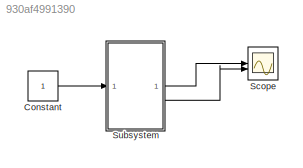
MODEL slx_930af4991390
KIND model
CONFIG AbsTol = auto
CONFIG EnableMultiTasking = off
CONFIG FixedStep = auto
CONFIG MaxStep = auto
CONFIG MinStep = auto
CONFIG RelTol = 1e-3
CONFIG SampleTimeConstraint = Unconstrained
CONFIG SolverName = VariableStepAuto
CONFIG StartTime = 0.0
CONFIG StopTime = 10.0
BLOCK [Constant] Constant
BLOCK [Scope] Scope
  Floating = off
  NumInputPorts = 2
  ScopeSpecificationString = Simulink.scopes.TimeScopeBlockCfg('CurrentConfiguration', extmgr.ConfigurationSet(extmgr.Configuration('Core','General UI',true),extmgr.Configuration('Core','Source UI',true),extmgr.Configuration('Sources','WiredSimulink',true),extmgr.Configuration('Visuals','Time Domain',true,'SerializedDisplays',{struct('MinYLimReal','-0.9981','MaxYLimReal','8.98289','YLabelReal','','MinYLimMag','0.00000','MaxYL...<+1432ch>
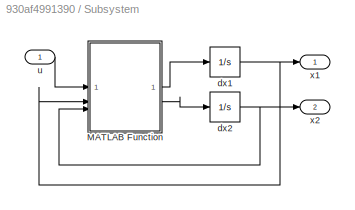
BLOCK [SubSystem] Subsystem
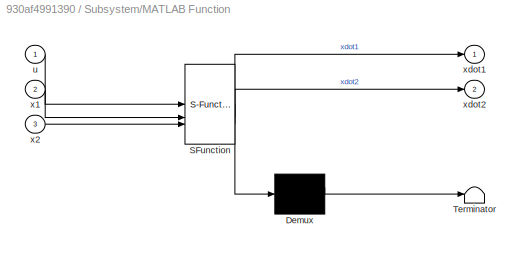
BLOCK [SubSystem] Subsystem/MATLAB Function
  ErrorFcn = Stateflow.Translate.translate
  PermitHierarchicalResolution = ExplicitOnly
  SFBlockType = MATLAB Function
  TreatAsAtomicUnit = on
BLOCK [Demux] Subsystem/MATLAB Function/ Demux 
  Outputs = 1
BLOCK [S-Function] Subsystem/MATLAB Function/ SFunction 
  EnableBusSupport = on
  FunctionName = sf_sfun
  Parameters = J,L,R,cF,d,kE,kM
  PortCounts = [3 3]
  SFcnIsStateOwnerBlock = off
  SFunctionDeploymentMode = off
  Tag = Stateflow S-Function 2
BLOCK [Terminator] Subsystem/MATLAB Function/ Terminator 
BLOCK [Inport] Subsystem/MATLAB Function/u
BLOCK [Inport] Subsystem/MATLAB Function/x1
  Port = 2
BLOCK [Inport] Subsystem/MATLAB Function/x2
  Port = 3
BLOCK [Outport] Subsystem/MATLAB Function/xdot1
BLOCK [Outport] Subsystem/MATLAB Function/xdot2
  Port = 2
BLOCK [Integrator] Subsystem/dx1
  InitialCondition = x10
BLOCK [Integrator] Subsystem/dx2
  InitialCondition = x20
BLOCK [Inport] Subsystem/u
BLOCK [Outport] Subsystem/x1
BLOCK [Outport] Subsystem/x2
  Port = 2
LINE Constant:1 -> Subsystem:1
LINE Subsystem/MATLAB Function:1 -> Subsystem/dx1:1
LINE Subsystem/MATLAB Function:2 -> Subsystem/dx2:1
NET Subsystem/dx1:1 -> Subsystem/MATLAB Function:2, Subsystem/x1:1
NET Subsystem/dx2:1 -> Subsystem/MATLAB Function:3, Subsystem/x2:1
LINE Subsystem/u:1 -> Subsystem/MATLAB Function:1
LINE Subsystem:1 -> Scope:1
LINE Subsystem:2 -> Scope:2
note: NET lines group one-source signal fan-out (src -> all destinations, sorted); 1:1 wires keep LINE
CHART Subsystem/MATLAB Function states=1 transitions=1
  STATE_LABEL 'eML_blk_kernel()'
  STATE_LABEL 'SCRIPT:\nfunction [xdot1,xdot2] = fcn(u,x1,x2,R, kM, kE, L, J, d, cF)\n\nxdot1 = -R/L*x1 - kE/L*x2 + 1/L*u;\nxdot2 = kM/J*x1 - d/J*x2 - cF/J*x2^2;\n\nend\n'
CHART  states=0 transitions=0
